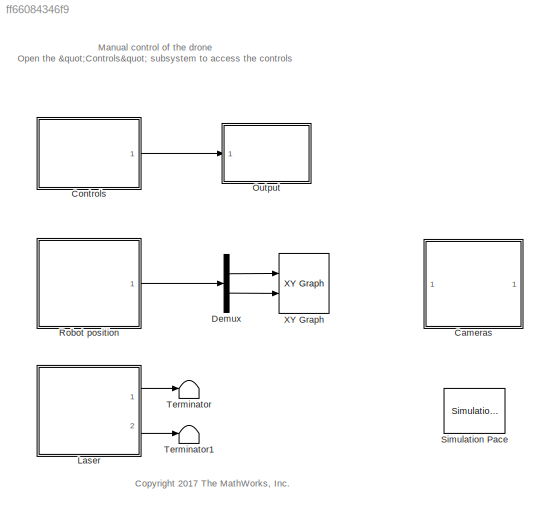
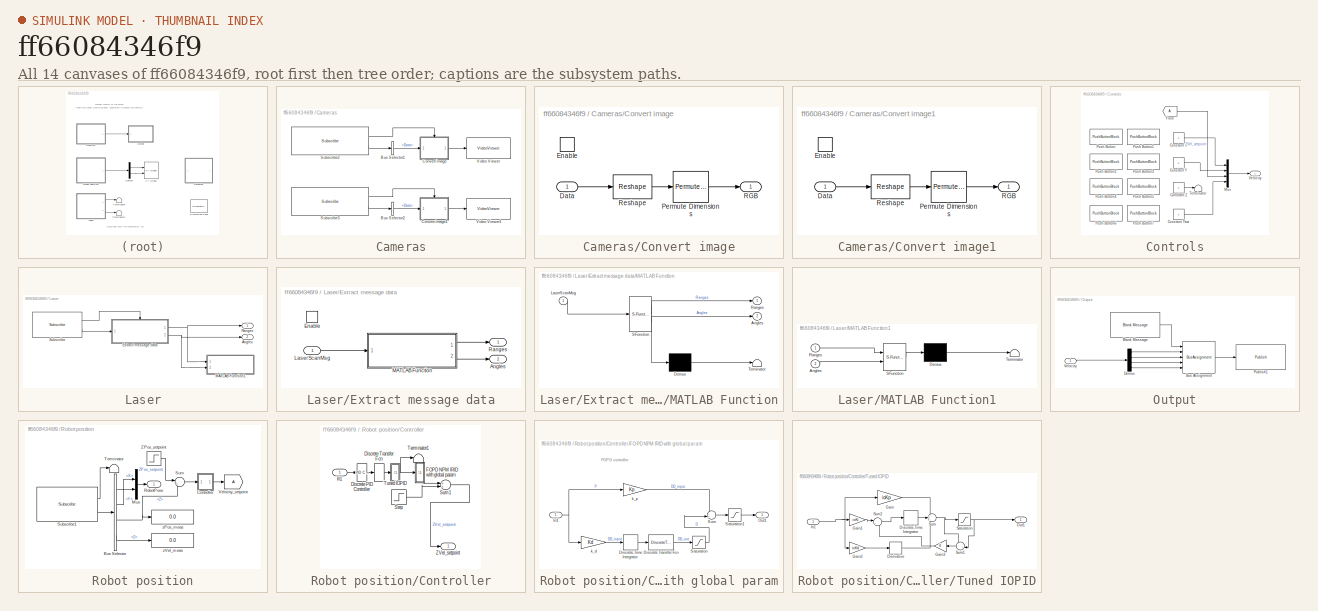
[diagram: thumbnail index - all 14 canvases of the model, root first then tree order]
MODEL slx_ff66084346f9
KIND model
CONFIG AbsTol = auto
CONFIG EnableMultiTasking = on
CONFIG FixedStep = 0.1
CONFIG MaxStep = auto
CONFIG MinStep = auto
CONFIG RelTol = 1e-3
CONFIG SampleTimeConstraint = Unconstrained
CONFIG Solver = FixedStepDiscrete
CONFIG SolverName = FixedStepDiscrete
CONFIG StartTime = 0.0
CONFIG StopTime = 60
WORKSPACE source: MAT-file member
WORKSPACE SL_ROS_VariableLengthArrays_MaxSizes: struct (value not decoded)
BLOCK [SubSystem] Cameras
  Commented = on
  Ports = []
  RequestExecContextInheritance = off
BLOCK [BusSelector] Cameras/Bus Selector1
  DialogController = Simulink.DDGSource_BusSelector
  OutputAsBus = off
  OutputSignals = Data
  Ports = [1, 1]
BLOCK [BusSelector] Cameras/Bus Selector2
  DialogController = Simulink.DDGSource_BusSelector
  OutputAsBus = off
  OutputSignals = Data
  Ports = [1, 1]
BLOCK [SubSystem] Cameras/Convert image
  Ports = [1, 1, 1]
  RequestExecContextInheritance = off
BLOCK [Inport] Cameras/Convert image/Data
  IconDisplay = Port number
BLOCK [EnablePort] Cameras/Convert image/Enable
  Ports = []
BLOCK [PermuteDimensions] Cameras/Convert image/Permute Dimensions
  Order = [3 2 1]
BLOCK [Outport] Cameras/Convert image/RGB
  IconDisplay = Port number
BLOCK [Reshape] Cameras/Convert image/Reshape
  OutputDimensionality = Customize
  OutputDimensions = [3 640 360]
  Ports = [1, 1]
BLOCK [SubSystem] Cameras/Convert image1
  Ports = [1, 1, 1]
  RequestExecContextInheritance = off
BLOCK [Inport] Cameras/Convert image1/Data
  IconDisplay = Port number
BLOCK [EnablePort] Cameras/Convert image1/Enable
  Ports = []
BLOCK [PermuteDimensions] Cameras/Convert image1/Permute Dimensions
  Order = [3 2 1]
BLOCK [Outport] Cameras/Convert image1/RGB
  IconDisplay = Port number
BLOCK [Reshape] Cameras/Convert image1/Reshape
  OutputDimensionality = Customize
  OutputDimensions = [3 640 360]
  Ports = [1, 1]
BLOCK [Reference] Cameras/Subscribe2  REF=robotlib/Subscribe
  Ports = [0, 2]
  SourceBlock = robotlib/Subscribe
  SourceProductBaseCode = RO
  SourceProductName = Robotics System Toolbox
  SourceType = ROS Subscribe
BLOCK [Reference] Cameras/Subscribe3  REF=robotlib/Subscribe
  Ports = [0, 2]
  SourceBlock = robotlib/Subscribe
  SourceProductBaseCode = RO
  SourceProductName = Robotics System Toolbox
  SourceType = ROS Subscribe
BLOCK [VideoViewer] Cameras/Video Viewer
  FigPos = [672 404 609 271.6]
  Ports = [1]
  ScopeSpecificationString = vipscopes.VideoViewerScopeCfg('CurrentConfiguration', extmgr.ConfigurationSet(extmgr.Configuration('Core','General UI',true),extmgr.Configuration('Core','Source UI',true),extmgr.Configuration('Sources','WiredSimulink',true),extmgr.Configuration('Visuals','Video',true),extmgr.Configuration('Tools','Image Navigation Tools',true),extmgr.Configuration('Tools','Image Tool',true),extmgr.Configuration('T...<+77ch>
  colormapValue = gray(256)
BLOCK [VideoViewer] Cameras/Video Viewer1
  FigPos = [671 757 610 376]
  Ports = [1]
  ScopeSpecificationString = vipscopes.VideoViewerScopeCfg('CurrentConfiguration', extmgr.ConfigurationSet(extmgr.Configuration('Core','General UI',true),extmgr.Configuration('Core','Source UI',true),extmgr.Configuration('Sources','WiredSimulink',true),extmgr.Configuration('Visuals','Video',true),extmgr.Configuration('Tools','Image Navigation Tools',true),extmgr.Configuration('Tools','Image Tool',true),extmgr.Configuration('T...<+74ch>
  colormapValue = gray(256)
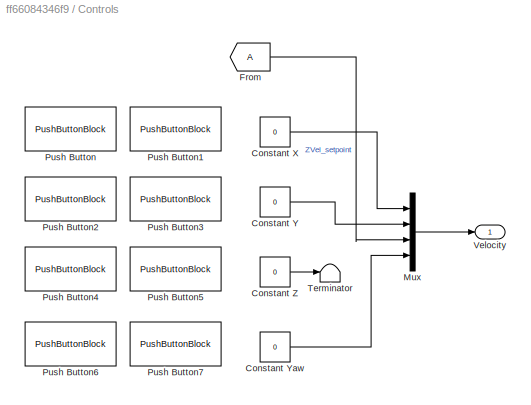
BLOCK [SubSystem] Controls
  Ports = [0, 1]
  RequestExecContextInheritance = off
BLOCK [Constant] Controls/Constant X
  Value = 0
BLOCK [Constant] Controls/Constant Y
  Value = 0
BLOCK [Constant] Controls/Constant Yaw
  Value = 0
BLOCK [Constant] Controls/Constant Z
  Value = 0
BLOCK [From] Controls/From
  TagVisibility = global
BLOCK [Mux] Controls/Mux
  DisplayOption = bar
  Ports = [4, 1]
BLOCK [PushButtonBlock] Controls/Push Button
  ButtonText = Backward
  LabelPosition = Top
  OnValue = -1
BLOCK [PushButtonBlock] Controls/Push Button1
  ButtonText = Forward
  LabelPosition = Top
BLOCK [PushButtonBlock] Controls/Push Button2
  ButtonText = Left
  LabelPosition = Top
BLOCK [PushButtonBlock] Controls/Push Button3
  ButtonText = Right
  LabelPosition = Top
  OnValue = -1
BLOCK [PushButtonBlock] Controls/Push Button4
  ButtonText = Down
  LabelPosition = Top
  OnValue = -1
BLOCK [PushButtonBlock] Controls/Push Button5
  ButtonText = Up
  LabelPosition = Top
BLOCK [PushButtonBlock] Controls/Push Button6
  ButtonText = Counterclockwise
  LabelPosition = Top
BLOCK [PushButtonBlock] Controls/Push Button7
  ButtonText = Clockwise
  LabelPosition = Top
  OnValue = -1
BLOCK [Terminator] Controls/Terminator
BLOCK [Outport] Controls/Velocity
  IconDisplay = Port number
BLOCK [Demux] Demux
  DisplayOption = bar
  Outputs = 2
  Ports = [1, 2]
BLOCK [SubSystem] Laser
  Commented = on
  Ports = [0, 2]
  RequestExecContextInheritance = off
BLOCK [Outport] Laser/Angles
  IconDisplay = Port number
  Port = 2
BLOCK [SubSystem] Laser/Extract message data
  Ports = [1, 2, 1]
  RequestExecContextInheritance = off
BLOCK [Outport] Laser/Extract message data/Angles
  IconDisplay = Port number
  Port = 2
BLOCK [EnablePort] Laser/Extract message data/Enable
  Ports = []
BLOCK [Inport] Laser/Extract message data/LaserScanMsg
  IconDisplay = Port number
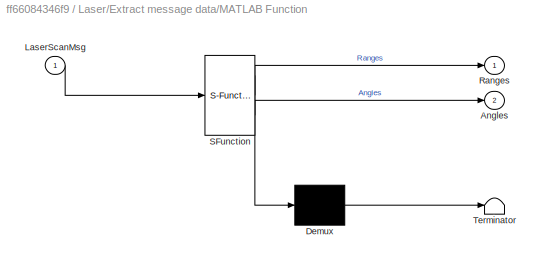
BLOCK [SubSystem] Laser/Extract message data/MATLAB Function
  ErrorFcn = Stateflow.Translate.translate
  PermitHierarchicalResolution = ExplicitOnly
  Ports = [1, 2]
  RequestExecContextInheritance = off
  SFBlockType = MATLAB Function
  TreatAsAtomicUnit = on
BLOCK [Demux] Laser/Extract message data/MATLAB Function/ Demux 
  Outputs = 1
  Ports = [1, 1]
BLOCK [S-Function] Laser/Extract message data/MATLAB Function/ SFunction 
  EnableBusSupport = on
  FunctionName = sf_sfun
  PortCounts = [1 3]
  Ports = [1, 3]
  SFcnIsStateOwnerBlock = off
  SFunctionDeploymentMode = off
  Tag = Stateflow S-Function manualControl 5
BLOCK [Terminator] Laser/Extract message data/MATLAB Function/ Terminator 
BLOCK [Outport] Laser/Extract message data/MATLAB Function/Angles
  IconDisplay = Port number
  Port = 2
BLOCK [Inport] Laser/Extract message data/MATLAB Function/LaserScanMsg
  IconDisplay = Port number
BLOCK [Outport] Laser/Extract message data/MATLAB Function/Ranges
  IconDisplay = Port number
BLOCK [Outport] Laser/Extract message data/Ranges
  IconDisplay = Port number
BLOCK [SubSystem] Laser/MATLAB Function1
  ErrorFcn = Stateflow.Translate.translate
  PermitHierarchicalResolution = ExplicitOnly
  Ports = [2]
  RequestExecContextInheritance = off
  SFBlockType = MATLAB Function
  TreatAsAtomicUnit = on
BLOCK [Demux] Laser/MATLAB Function1/ Demux 
  Outputs = 1
  Ports = [1, 1]
BLOCK [S-Function] Laser/MATLAB Function1/ SFunction 
  EnableBusSupport = on
  FunctionName = sf_sfun
  PortCounts = [2 1]
  Ports = [2, 1]
  SFcnIsStateOwnerBlock = off
  SFunctionDeploymentMode = off
  Tag = Stateflow S-Function manualControl 3
BLOCK [Terminator] Laser/MATLAB Function1/ Terminator 
BLOCK [Inport] Laser/MATLAB Function1/Angles
  IconDisplay = Port number
  Port = 2
BLOCK [Inport] Laser/MATLAB Function1/Ranges
  IconDisplay = Port number
BLOCK [Outport] Laser/Ranges
  IconDisplay = Port number
BLOCK [Reference] Laser/Subscribe  REF=robotlib/Subscribe
  Ports = [0, 2]
  SourceBlock = robotlib/Subscribe
  SourceProductBaseCode = RO
  SourceProductName = Robotics System Toolbox
  SourceType = ROS Subscribe
BLOCK [SubSystem] Output
  Ports = [1]
  RequestExecContextInheritance = off
BLOCK [Reference] Output/Blank Message  REF=robotlib/Blank Message
  Ports = [0, 1]
  SourceBlock = robotlib/Blank Message
  SourceProductBaseCode = RO
  SourceProductName = Robotics System Toolbox
  SourceType = ROS Blank Message
BLOCK [BusAssignment] Output/Bus Assignment
  AssignedSignals = Linear.X,Linear.Y,Linear.Z,Angular.Z
  DialogController = Simulink.DDGSource_BusAssignment
  Ports = [5, 1]
BLOCK [Demux] Output/Demux
  DisplayOption = bar
  Ports = [1, 4]
BLOCK [Reference] Output/Publish1  REF=robotlib/Publish
  Ports = [1]
  SourceBlock = robotlib/Publish
  SourceProductBaseCode = RO
  SourceProductName = Robotics System Toolbox
  SourceType = ROS Publish
BLOCK [Inport] Output/Velocity
  IconDisplay = Port number
BLOCK [SubSystem] Robot position
  Ports = [0, 1]
  RequestExecContextInheritance = off
BLOCK [BusSelector] Robot position/Bus Selector
  DialogController = Simulink.DDGSource_BusSelector
  OutputAsBus = off
  OutputSignals = Pose.Pose.Position.X,Pose.Pose.Position.Y,Pose.Pose.Position.Z,Twist.Twist.Linear.Z
  Ports = [1, 4]
BLOCK [SubSystem] Robot position/Controller
  Ports = [1, 1]
  RequestExecContextInheritance = off
  ShowPortLabels = none
BLOCK [Reference] Robot position/Controller/Discrete PID Controller  REF=simulink/Continuous/PID Controller
  Commented = through
  Ports = [1, 1]
  SourceBlock = simulink/Continuous/PID Controller
  SourceProductBaseCode = SL
  SourceProductName = Simulink
  SourceType = PID 1dof
BLOCK [DiscreteTransferFcn] Robot position/Controller/Discrete Transfer Fcn
  Commented = through
  Denominator = d.Den{1,1}
  InputPortMap = u0
  Numerator = d.Num{1,1}
  Ports = [1, 1]
BLOCK [SubSystem] Robot position/Controller/FOPD NPM IRID with global param
  Ports = [1, 1]
  RequestExecContextInheritance = off
  ShowPortLabels = none
BLOCK [DiscreteTransferFcn] Robot position/Controller/FOPD NPM IRID with global param/Discrete Transfer Fcn
  Denominator = dfod.Denominator{1,1}
  InputPortMap = u0
  Numerator = dfod.Num{1,1}
  Ports = [1, 1]
  SampleTime = 0.1
BLOCK [DiscreteIntegrator] Robot position/Controller/FOPD NPM IRID with global param/Discrete-Time Integrator
  ICPrevOutput = DiscIntNeverNeededParam
  ICPrevScaledInput = DiscIntNeverNeededParam
  InitialConditionSetting = Auto
  Ports = [1, 1]
  SampleTime = 0.1
BLOCK [Inport] Robot position/Controller/FOPD NPM IRID with global param/In1
  IconDisplay = Port number
BLOCK [Outport] Robot position/Controller/FOPD NPM IRID with global param/Out1
  IconDisplay = Port number
BLOCK [Saturate] Robot position/Controller/FOPD NPM IRID with global param/Saturation
  InputPortMap = u0
  LowerLimit = -100
  Ports = [1, 1]
  UpperLimit = 100
BLOCK [Saturate] Robot position/Controller/FOPD NPM IRID with global param/Saturation1
  InputPortMap = u0
  LowerLimit = -200
  Ports = [1, 1]
  UpperLimit = 200
BLOCK [Sum] Robot position/Controller/FOPD NPM IRID with global param/Sum
  IconShape = round
  InputSameDT = off
  Inputs = ++|
  OutDataTypeStr = Inherit: Inherit via internal rule
  Ports = [2, 1]
  SaturateOnIntegerOverflow = off
BLOCK [Gain] Robot position/Controller/FOPD NPM IRID with global param/k_d
  Gain = Kd
  OutDataTypeStr = Inherit: Inherit via internal rule
  ParamDataTypeStr = Inherit: Inherit via internal rule
  SaturateOnIntegerOverflow = off
BLOCK [Gain] Robot position/Controller/FOPD NPM IRID with global param/k_p
  Gain = Kp
  OutDataTypeStr = Inherit: Inherit via internal rule
  ParamDataTypeStr = Inherit: Inherit via internal rule
  SaturateOnIntegerOverflow = off
BLOCK [Inport] Robot position/Controller/In1
  IconDisplay = Port number
BLOCK [Step] Robot position/Controller/Step
  Commented = on
  SampleTime = 0.1
  Time = 5
BLOCK [Sum] Robot position/Controller/Sum1
  IconShape = round
  InputSameDT = off
  Inputs = ++|
  OutDataTypeStr = Inherit: Inherit via internal rule
  Ports = [2, 1]
  SaturateOnIntegerOverflow = off
BLOCK [Terminator] Robot position/Controller/Terminator1
  Commented = on
BLOCK [SubSystem] Robot position/Controller/Tuned IOPID
  Commented = through
  Ports = [1, 1]
  RequestExecContextInheritance = off
  ShowPortLabels = none
BLOCK [Derivative] Robot position/Controller/Tuned IOPID/Derivative
BLOCK [DiscreteIntegrator] Robot position/Controller/Tuned IOPID/Discrete-Time Integrator
  ICPrevOutput = DiscIntNeverNeededParam
  ICPrevScaledInput = DiscIntNeverNeededParam
  InitialConditionSetting = Auto
  Ports = [1, 1]
  SampleTime = -1
BLOCK [Gain] Robot position/Controller/Tuned IOPID/Gain
  Gain = ioKp
  OutDataTypeStr = Inherit: Inherit via internal rule
  ParamDataTypeStr = Inherit: Inherit via internal rule
  SaturateOnIntegerOverflow = off
BLOCK [Gain] Robot position/Controller/Tuned IOPID/Gain1
  Gain = ioKi
  OutDataTypeStr = Inherit: Inherit via internal rule
  ParamDataTypeStr = Inherit: Inherit via internal rule
  SaturateOnIntegerOverflow = off
BLOCK [Gain] Robot position/Controller/Tuned IOPID/Gain2
  Gain = ioKd
  OutDataTypeStr = Inherit: Inherit via internal rule
  ParamDataTypeStr = Inherit: Inherit via internal rule
  SaturateOnIntegerOverflow = off
BLOCK [Gain] Robot position/Controller/Tuned IOPID/Gain3
  OutDataTypeStr = Inherit: Inherit via internal rule
  ParamDataTypeStr = Inherit: Inherit via internal rule
  SaturateOnIntegerOverflow = off
BLOCK [Inport] Robot position/Controller/Tuned IOPID/In1
  IconDisplay = Port number
BLOCK [Outport] Robot position/Controller/Tuned IOPID/Out1
  IconDisplay = Port number
BLOCK [Saturate] Robot position/Controller/Tuned IOPID/Saturation
  InputPortMap = u0
  LowerLimit = -10
  Ports = [1, 1]
  UpperLimit = 10
BLOCK [Sum] Robot position/Controller/Tuned IOPID/Sum
  IconShape = round
  InputSameDT = off
  Inputs = +++
  OutDataTypeStr = Inherit: Inherit via internal rule
  Ports = [3, 1]
  SaturateOnIntegerOverflow = off
BLOCK [Sum] Robot position/Controller/Tuned IOPID/Sum1
  IconShape = round
  InputSameDT = off
  Inputs = -+|
  OutDataTypeStr = Inherit: Inherit via internal rule
  Ports = [2, 1]
  SaturateOnIntegerOverflow = off
BLOCK [Sum] Robot position/Controller/Tuned IOPID/Sum2
  IconShape = round
  InputSameDT = off
  Inputs = |++
  OutDataTypeStr = Inherit: Inherit via internal rule
  Ports = [2, 1]
  SaturateOnIntegerOverflow = off
BLOCK [Outport] Robot position/Controller/ZVel_setpoint
  IconDisplay = Port number
BLOCK [Mux] Robot position/Mux
  DisplayOption = bar
  Inputs = 2
  Ports = [2, 1]
BLOCK [Outport] Robot position/RobotPose
  IconDisplay = Port number
BLOCK [Reference] Robot position/Subscribe1  REF=robotlib/Subscribe
  Ports = [0, 2]
  SourceBlock = robotlib/Subscribe
  SourceProductBaseCode = RO
  SourceProductName = Robotics System Toolbox
  SourceType = ROS Subscribe
BLOCK [Sum] Robot position/Sum
  IconShape = round
  InputSameDT = off
  Inputs = |+-
  OutDataTypeStr = Inherit: Inherit via internal rule
  Ports = [2, 1]
  SaturateOnIntegerOverflow = off
BLOCK [Terminator] Robot position/Terminator
BLOCK [Goto] Robot position/Velocity_setpoint
  TagVisibility = global
BLOCK [Step] Robot position/ZPos_setpoint
  SampleTime = 0.1
  Time = 10
BLOCK [Display] Robot position/zPos_meas
  Decimation = 1
  Ports = [1]
BLOCK [Display] Robot position/zVel_meas
  Decimation = 1
  Ports = [1]
BLOCK [Reference] Simulation Pace  REF=aerolibanimutils/Simulation Pace
  AttributesFormatString = %<SleepMode>\n%<SimulationPace> sec/sec
  Ports = []
  SourceBlock = aerolibanimutils/Simulation Pace
  SourceProductBaseCode = AE
  SourceProductName = Aerospace Blockset
  SourceType = Simulation Pace
BLOCK [Terminator] Terminator
BLOCK [Terminator] Terminator1
BLOCK [Reference] XY Graph  REF=simulink/Sinks/XY Graph
  Ports = [2]
  SourceBlock = simulink/Sinks/XY Graph
  SourceProductBaseCode = SL
  SourceProductName = Simulink
  SourceType = XY scope.
ANNOTATION (root): Manual control of the drone Open the "Controls" subsystem to access the controls
ANNOTATION (root): <copyright redacted>
ANNOTATION Robot position/Controller/FOPD NPM IRID with global param: FOPD controller
LINE Cameras/Bus Selector1:1 -> Cameras/Convert image:1
LINE Cameras/Bus Selector2:1 -> Cameras/Convert image1:1
LINE Cameras/Convert image/Data:1 -> Cameras/Convert image/Reshape:1
LINE Cameras/Convert image/Permute Dimensions:1 -> Cameras/Convert image/RGB:1
LINE Cameras/Convert image/Reshape:1 -> Cameras/Convert image/Permute Dimensions:1
LINE Cameras/Convert image1/Data:1 -> Cameras/Convert image1/Reshape:1
LINE Cameras/Convert image1/Permute Dimensions:1 -> Cameras/Convert image1/RGB:1
LINE Cameras/Convert image1/Reshape:1 -> Cameras/Convert image1/Permute Dimensions:1
LINE Cameras/Convert image1:1 -> Cameras/Video Viewer1:1
LINE Cameras/Convert image:1 -> Cameras/Video Viewer:1
LINE Cameras/Subscribe2:1 -> Cameras/Convert image:enable
LINE Cameras/Subscribe2:2 -> Cameras/Bus Selector1:1
LINE Cameras/Subscribe3:1 -> Cameras/Convert image1:enable
LINE Cameras/Subscribe3:2 -> Cameras/Bus Selector2:1
LINE Controls/Constant X:1 -> Controls/Mux:1
LINE Controls/Constant Y:1 -> Controls/Mux:2
LINE Controls/Constant Yaw:1 -> Controls/Mux:4
LINE Controls/Constant Z:1 -> Controls/Terminator:1
LINE Controls/From:1 -> Controls/Mux:3
LINE Controls/Mux:1 -> Controls/Velocity:1
LINE Controls:1 -> Output:1
LINE Demux:1 -> XY Graph:1
LINE Demux:2 -> XY Graph:2
LINE Laser/Extract message data/LaserScanMsg:1 -> Laser/Extract message data/MATLAB Function:1
LINE Laser/Extract message data/MATLAB Function:1 -> Laser/Extract message data/Ranges:1
LINE Laser/Extract message data/MATLAB Function:2 -> Laser/Extract message data/Angles:1
NET Laser/Extract message data:1 -> Laser/MATLAB Function1:1, Laser/Ranges:1
NET Laser/Extract message data:2 -> Laser/Angles:1, Laser/MATLAB Function1:2
LINE Laser/Subscribe:1 -> Laser/Extract message data:enable
LINE Laser/Subscribe:2 -> Laser/Extract message data:1
LINE Laser:1 -> Terminator:1
LINE Laser:2 -> Terminator1:1
LINE Output/Blank Message:1 -> Output/Bus Assignment:1
LINE Output/Bus Assignment:1 -> Output/Publish1:1
LINE Output/Demux:1 -> Output/Bus Assignment:2
LINE Output/Demux:2 -> Output/Bus Assignment:3
LINE Output/Demux:3 -> Output/Bus Assignment:4
LINE Output/Demux:4 -> Output/Bus Assignment:5
LINE Output/Velocity:1 -> Output/Demux:1
LINE Robot position/Bus Selector:1 -> Robot position/Mux:1
LINE Robot position/Bus Selector:2 -> Robot position/Mux:2
NET Robot position/Bus Selector:3 -> Robot position/Sum:2, Robot position/zPos_meas:1
LINE Robot position/Bus Selector:4 -> Robot position/zVel_meas:1
LINE Robot position/Controller/Discrete PID Controller:1 -> Robot position/Controller/Discrete Transfer Fcn:1
LINE Robot position/Controller/Discrete Transfer Fcn:1 -> Robot position/Controller/Tuned IOPID:1
LINE Robot position/Controller/FOPD NPM IRID with global param/Discrete Transfer Fcn:1 -> Robot position/Controller/FOPD NPM IRID with global param/Saturation:1
LINE Robot position/Controller/FOPD NPM IRID with global param/Discrete-Time Integrator:1 -> Robot position/Controller/FOPD NPM IRID with global param/Discrete Transfer Fcn:1
NET Robot position/Controller/FOPD NPM IRID with global param/In1:1 -> Robot position/Controller/FOPD NPM IRID with global param/k_d:1, Robot position/Controller/FOPD NPM IRID with global param/k_p:1
LINE Robot position/Controller/FOPD NPM IRID with global param/Saturation1:1 -> Robot position/Controller/FOPD NPM IRID with global param/Out1:1
LINE Robot position/Controller/FOPD NPM IRID with global param/Saturation:1 -> Robot position/Controller/FOPD NPM IRID with global param/Sum:2
LINE Robot position/Controller/FOPD NPM IRID with global param/Sum:1 -> Robot position/Controller/FOPD NPM IRID with global param/Saturation1:1
LINE Robot position/Controller/FOPD NPM IRID with global param/k_d:1 -> Robot position/Controller/FOPD NPM IRID with global param/Discrete-Time Integrator:1
LINE Robot position/Controller/FOPD NPM IRID with global param/k_p:1 -> Robot position/Controller/FOPD NPM IRID with global param/Sum:1
LINE Robot position/Controller/FOPD NPM IRID with global param:1 -> Robot position/Controller/Sum1:1
LINE Robot position/Controller/In1:1 -> Robot position/Controller/Discrete PID Controller:1
LINE Robot position/Controller/Step:1 -> Robot position/Controller/Sum1:2
LINE Robot position/Controller/Sum1:1 -> Robot position/Controller/ZVel_setpoint:1
LINE Robot position/Controller/Tuned IOPID/Derivative:1 -> Robot position/Controller/Tuned IOPID/Sum:3
LINE Robot position/Controller/Tuned IOPID/Discrete-Time Integrator:1 -> Robot position/Controller/Tuned IOPID/Sum:2
LINE Robot position/Controller/Tuned IOPID/Gain1:1 -> Robot position/Controller/Tuned IOPID/Sum2:1
LINE Robot position/Controller/Tuned IOPID/Gain2:1 -> Robot position/Controller/Tuned IOPID/Derivative:1
LINE Robot position/Controller/Tuned IOPID/Gain3:1 -> Robot position/Controller/Tuned IOPID/Sum2:2
LINE Robot position/Controller/Tuned IOPID/Gain:1 -> Robot position/Controller/Tuned IOPID/Sum:1
NET Robot position/Controller/Tuned IOPID/In1:1 -> Robot position/Controller/Tuned IOPID/Gain1:1, Robot position/Controller/Tuned IOPID/Gain2:1, Robot position/Controller/Tuned IOPID/Gain:1
NET Robot position/Controller/Tuned IOPID/Saturation:1 -> Robot position/Controller/Tuned IOPID/Out1:1, Robot position/Controller/Tuned IOPID/Sum1:2
LINE Robot position/Controller/Tuned IOPID/Sum1:1 -> Robot position/Controller/Tuned IOPID/Gain3:1
LINE Robot position/Controller/Tuned IOPID/Sum2:1 -> Robot position/Controller/Tuned IOPID/Discrete-Time Integrator:1
NET Robot position/Controller/Tuned IOPID/Sum:1 -> Robot position/Controller/Tuned IOPID/Saturation:1, Robot position/Controller/Tuned IOPID/Sum1:1
NET Robot position/Controller/Tuned IOPID:1 -> Robot position/Controller/FOPD NPM IRID with global param:1, Robot position/Controller/Terminator1:1
LINE Robot position/Controller:1 -> Robot position/Velocity_setpoint:1
LINE Robot position/Mux:1 -> Robot position/RobotPose:1
LINE Robot position/Subscribe1:1 -> Robot position/Terminator:1
LINE Robot position/Subscribe1:2 -> Robot position/Bus Selector:1
LINE Robot position/Sum:1 -> Robot position/Controller:1
LINE Robot position/ZPos_setpoint:1 -> Robot position/Sum:1
LINE Robot position:1 -> Demux:1
note: NET lines group one-source signal fan-out (src -> all destinations, sorted); 1:1 wires keep LINE
CHART Laser/MATLAB Function1 states=1 transitions=1
  STATE_LABEL 'eML_blk_kernel()'
  STATE_LABEL "SCRIPT:\nfunction plotLaser(Ranges, Angles)\ncoder.extrinsic('polarplot');\npersistent p;\nif isempty(p)\n    p = polarplot(0, 0, '.');\n    set(gca, 'ThetaZeroLocation', 'top', 'ThetaLim', [-135 135], ...\n        'RAxisLocation', 0, 'RLim', [0 10]);\nend\nif ishandle(p)\n    set(p, 'ThetaData', Angles);\n    set(p, 'RData', Ranges);\n    drawnow limitrate;\nend\n"
CHART Laser/Extract message data/MATLAB Function states=1 transitions=1
  STATE_LABEL 'eML_blk_kernel()'
  STATE_LABEL "SCRIPT:\nfunction [Ranges, Angles] = ExtractRangeData(LaserScanMsg)\n%#codegen\n\n% Extract Range information\nRanges = double(LaserScanMsg.Ranges);\n\n% Construct Angles vector using AngleMin and AngleIncrement from sensor\n% reading.\nangMin = double(LaserScanMsg.AngleMin);\nangMax = double(LaserScanMsg.AngleMax);\nrawAngles = linspace(angMax, angMin, numel(Ranges)).';\n\n% Wrap the angles to the (-pi,pi] in...<+63ch>"
